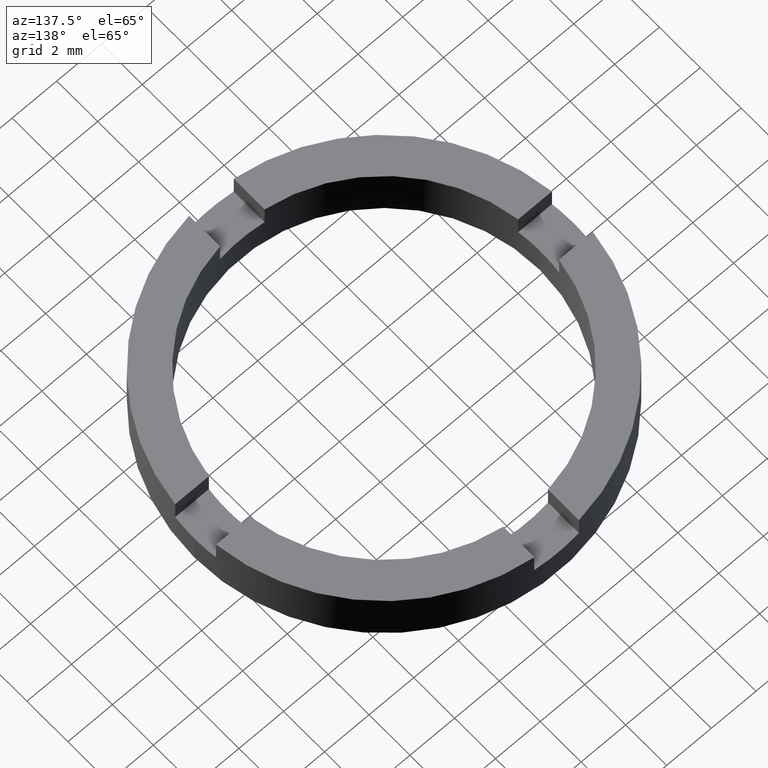
[diagram: clean part render]
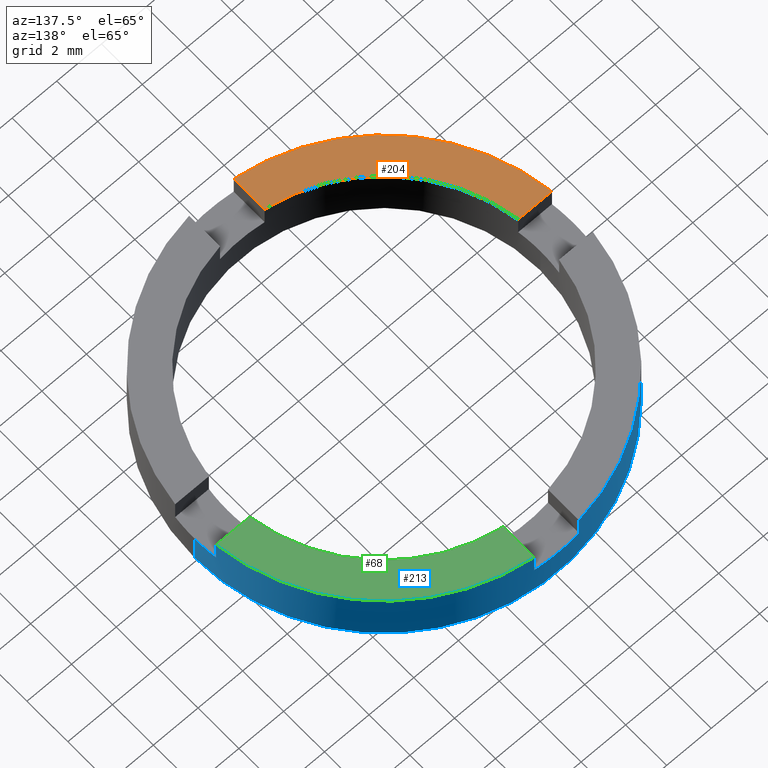
[diagram: same view with three faces highlighted in distinct colors, each labeled with its STEP entity id]
A machine part, auxiliary view with three faces highlighted in distinct colors.
Their STEP definitions:

[orange] entity #204 — the highlighted planar face has unit normal (0, 0, 1).
#14 = CARTESIAN_POINT ( 'NONE',  ( -0.9999999999999986677, 0.000000000000000000, 2.500000000000000000 ) ) ;
#21 = EDGE_LOOP ( 'NONE', ( #253, #698, #503, #543 ) ) ;
#47 = VECTOR ( 'NONE', #82, 1000.000000000000000 ) ;
#52 = LINE ( 'NONE', #421, #47 ) ;
#65 = CIRCLE ( 'NONE', #172, 8.500000000000000000 ) ;
#71 = CARTESIAN_POINT ( 'NONE',  ( 0.000000000000000000, 0.000000000000000000, 2.500000000000000000 ) ) ;
#82 = DIRECTION ( 'NONE',  ( 1.000000000000000000, -3.737308665155915423E-15, 0.000000000000000000 ) ) ;
#99 = EDGE_CURVE ( 'NONE', #127, #759, #488, .T. ) ;
#127 = VERTEX_POINT ( 'NONE', #416 ) ;
#162 = CARTESIAN_POINT ( 'NONE',  ( 0.000000000000000000, 0.000000000000000000, 2.500000000000000000 ) ) ;
#172 = AXIS2_PLACEMENT_3D ( 'NONE', #71, #773, #370 ) ;
#188 = DIRECTION ( 'NONE',  ( 0.000000000000000000, 0.000000000000000000, 1.000000000000000000 ) ) ;
#204 = ADVANCED_FACE ( 'NONE', ( #318 ), #680, .T. ) ;
#252 = VERTEX_POINT ( 'NONE', #469 ) ;
#253 = ORIENTED_EDGE ( 'NONE', *, *, #320, .F. ) ;
#318 = FACE_OUTER_BOUND ( 'NONE', #21, .T. ) ;
#320 = EDGE_CURVE ( 'NONE', #478, #252, #52, .T. ) ;
#335 = CIRCLE ( 'NONE', #646, 7.000000000000000000 ) ;
#351 = CARTESIAN_POINT ( 'NONE',  ( -8.440971508067070417, -0.9999999999999696909, 2.500000000000000000 ) ) ;
#353 = AXIS2_PLACEMENT_3D ( 'NONE', #504, #188, #358 ) ;
#358 = DIRECTION ( 'NONE',  ( 1.000000000000000000, 0.000000000000000000, -0.000000000000000000 ) ) ;
#370 = DIRECTION ( 'NONE',  ( 1.000000000000000000, 0.000000000000000000, 0.000000000000000000 ) ) ;
#416 = CARTESIAN_POINT ( 'NONE',  ( -0.9999999999999986677, -8.440971508067066864, 2.500000000000000000 ) ) ;
#421 = CARTESIAN_POINT ( 'NONE',  ( -3.737308665155919368E-15, -1.000000000000001110, 2.500000000000000000 ) ) ;
#469 = CARTESIAN_POINT ( 'NONE',  ( -6.928203230275513214, -0.9999999999999753530, 2.500000000000000000 ) ) ;
#478 = VERTEX_POINT ( 'NONE', #351 ) ;
#488 = LINE ( 'NONE', #14, #761 ) ;
#503 = ORIENTED_EDGE ( 'NONE', *, *, #99, .T. ) ;
#504 = CARTESIAN_POINT ( 'NONE',  ( 0.000000000000000000, 0.000000000000000000, 2.500000000000000000 ) ) ;
#543 = ORIENTED_EDGE ( 'NONE', *, *, #628, .F. ) ;
#573 = DIRECTION ( 'NONE',  ( 1.000000000000000000, 0.000000000000000000, 0.000000000000000000 ) ) ;
#577 = DIRECTION ( 'NONE',  ( 0.000000000000000000, 1.000000000000000000, -0.000000000000000000 ) ) ;
#598 = EDGE_CURVE ( 'NONE', #478, #127, #65, .T. ) ;
#611 = DIRECTION ( 'NONE',  ( 0.000000000000000000, 0.000000000000000000, 1.000000000000000000 ) ) ;
#628 = EDGE_CURVE ( 'NONE', #252, #759, #335, .T. ) ;
#646 = AXIS2_PLACEMENT_3D ( 'NONE', #162, #611, #573 ) ;
#680 = PLANE ( 'NONE',  #353 ) ;
#698 = ORIENTED_EDGE ( 'NONE', *, *, #598, .T. ) ;
#702 = CARTESIAN_POINT ( 'NONE',  ( -0.9999999999999986677, -6.928203230275509661, 2.500000000000000000 ) ) ;
#759 = VERTEX_POINT ( 'NONE', #702 ) ;
#761 = VECTOR ( 'NONE', #577, 1000.000000000000000 ) ;
#773 = DIRECTION ( 'NONE',  ( 0.000000000000000000, 0.000000000000000000, 1.000000000000000000 ) ) ;

[blue] entity #213 — the highlighted cylindrical surface (partial cylindrical patch) has radius 8.5 mm, axis along (-0, -0, -1).
#1 = LINE ( 'NONE', #619, #499 ) ;
#3 = ORIENTED_EDGE ( 'NONE', *, *, #400, .F. ) ;
#5 = CIRCLE ( 'NONE', #361, 8.500000000000000000 ) ;
#7 = ORIENTED_EDGE ( 'NONE', *, *, #138, .F. ) ;
#8 = VERTEX_POINT ( 'NONE', #76 ) ;
#9 = LINE ( 'NONE', #83, #497 ) ;
#20 = EDGE_CURVE ( 'NONE', #660, #282, #223, .T. ) ;
#37 = VECTOR ( 'NONE', #564, 1000.000000000000000 ) ;
#41 = CIRCLE ( 'NONE', #307, 8.500000000000000000 ) ;
#46 = LINE ( 'NONE', #192, #51 ) ;
#48 = CIRCLE ( 'NONE', #627, 8.500000000000000000 ) ;
#51 = VECTOR ( 'NONE', #290, 1000.000000000000000 ) ;
#53 = EDGE_CURVE ( 'NONE', #501, #660, #1, .T. ) ;
#73 = EDGE_LOOP ( 'NONE', ( #3, #113, #111, #278, #395, #726, #7, #535, #750, #738, #766, #270 ) ) ;
#76 = CARTESIAN_POINT ( 'NONE',  ( -8.500000000000000000, 0.000000000000000000, 0.000000000000000000 ) ) ;
#78 = DIRECTION ( 'NONE',  ( 0.000000000000000000, 0.000000000000000000, 1.000000000000000000 ) ) ;
#83 = CARTESIAN_POINT ( 'NONE',  ( -8.500000000000000000, 0.000000000000000000, 2.500000000000000000 ) ) ;
#89 = CARTESIAN_POINT ( 'NONE',  ( 0.000000000000000000, 0.000000000000000000, 0.000000000000000000 ) ) ;
#100 = CARTESIAN_POINT ( 'NONE',  ( -8.440971508067063311, 1.000000000000030642, 1.500000000000000000 ) ) ;
#107 = EDGE_CURVE ( 'NONE', #229, #377, #5, .T. ) ;
#111 = ORIENTED_EDGE ( 'NONE', *, *, #445, .T. ) ;
#113 = ORIENTED_EDGE ( 'NONE', *, *, #319, .T. ) ;
#129 = CARTESIAN_POINT ( 'NONE',  ( -8.500000000000000000, 0.000000000000000000, 1.500000000000000000 ) ) ;
#132 = AXIS2_PLACEMENT_3D ( 'NONE', #721, #729, #355 ) ;
#134 = DIRECTION ( 'NONE',  ( 0.000000000000000000, 0.000000000000000000, 1.000000000000000000 ) ) ;
#138 = EDGE_CURVE ( 'NONE', #659, #489, #48, .T. ) ;
#153 = CARTESIAN_POINT ( 'NONE',  ( 1.000000000000001332, 8.440971508067066864, 2.500000000000000000 ) ) ;
#158 = CARTESIAN_POINT ( 'NONE',  ( 8.500000000000000000, 1.040949779275250140E-15, 0.000000000000000000 ) ) ;
#165 = CARTESIAN_POINT ( 'NONE',  ( -8.440971508067063311, 1.000000000000030642, 1.500000000000000000 ) ) ;
#169 = DIRECTION ( 'NONE',  ( -0.000000000000000000, 0.000000000000000000, 1.000000000000000000 ) ) ;
#184 = AXIS2_PLACEMENT_3D ( 'NONE', #356, #360, #399 ) ;
#192 = CARTESIAN_POINT ( 'NONE',  ( 1.000000000000001332, 8.440971508067066864, 1.500000000000000000 ) ) ;
#198 = VERTEX_POINT ( 'NONE', #590 ) ;
#213 = ADVANCED_FACE ( 'NONE', ( #587 ), #306, .T. ) ;
#214 = DIRECTION ( 'NONE',  ( -0.000000000000000000, -0.000000000000000000, 1.000000000000000000 ) ) ;
#223 = CIRCLE ( 'NONE', #392, 8.500000000000000000 ) ;
#226 = VERTEX_POINT ( 'NONE', #604 ) ;
#229 = VERTEX_POINT ( 'NONE', #100 ) ;
#267 = EDGE_CURVE ( 'NONE', #724, #282, #46, .T. ) ;
#270 = ORIENTED_EDGE ( 'NONE', *, *, #53, .F. ) ;
#271 = EDGE_CURVE ( 'NONE', #724, #198, #313, .T. ) ;
#278 = ORIENTED_EDGE ( 'NONE', *, *, #715, .F. ) ;
#282 = VERTEX_POINT ( 'NONE', #153 ) ;
#290 = DIRECTION ( 'NONE',  ( -0.000000000000000000, -0.000000000000000000, 1.000000000000000000 ) ) ;
#297 = LINE ( 'NONE', #165, #593 ) ;
#306 = CYLINDRICAL_SURFACE ( 'NONE', #132, 8.500000000000000000 ) ;
#307 = AXIS2_PLACEMENT_3D ( 'NONE', #89, #134, #613 ) ;
#313 = CIRCLE ( 'NONE', #184, 8.500000000000000000 ) ;
#319 = EDGE_CURVE ( 'NONE', #226, #673, #583, .T. ) ;
#324 = DIRECTION ( 'NONE',  ( 1.000000000000000000, 0.000000000000000000, 0.000000000000000000 ) ) ;
#343 = VECTOR ( 'NONE', #644, 1000.000000000000000 ) ;
#344 = LINE ( 'NONE', #468, #343 ) ;
#355 = DIRECTION ( 'NONE',  ( -1.000000000000000000, 0.000000000000000000, 0.000000000000000000 ) ) ;
#356 = CARTESIAN_POINT ( 'NONE',  ( 0.000000000000000000, 0.000000000000000000, 1.500000000000000000 ) ) ;
#360 = DIRECTION ( 'NONE',  ( -0.000000000000000000, 0.000000000000000000, 1.000000000000000000 ) ) ;
#361 = AXIS2_PLACEMENT_3D ( 'NONE', #379, #471, #624 ) ;
#366 = CARTESIAN_POINT ( 'NONE',  ( 8.500000000000000000, 1.040949779275250140E-15, 2.500000000000000000 ) ) ;
#377 = VERTEX_POINT ( 'NONE', #129 ) ;
#379 = CARTESIAN_POINT ( 'NONE',  ( 0.000000000000000000, 0.000000000000000000, 1.500000000000000000 ) ) ;
#392 = AXIS2_PLACEMENT_3D ( 'NONE', #650, #460, #324 ) ;
#395 = ORIENTED_EDGE ( 'NONE', *, *, #107, .F. ) ;
#399 = DIRECTION ( 'NONE',  ( 1.000000000000000000, 0.000000000000000000, 0.000000000000000000 ) ) ;
#400 = EDGE_CURVE ( 'NONE', #226, #501, #574, .T. ) ;
#433 = CARTESIAN_POINT ( 'NONE',  ( -8.440971508067063311, 1.000000000000030642, 2.500000000000000000 ) ) ;
#445 = EDGE_CURVE ( 'NONE', #673, #8, #41, .T. ) ;
#456 = EDGE_CURVE ( 'NONE', #229, #489, #297, .T. ) ;
#460 = DIRECTION ( 'NONE',  ( 0.000000000000000000, 0.000000000000000000, 1.000000000000000000 ) ) ;
#464 = CARTESIAN_POINT ( 'NONE',  ( 8.440971508067070417, 0.9999999999999672484, 2.500000000000000000 ) ) ;
#468 = CARTESIAN_POINT ( 'NONE',  ( -0.9999999999999986677, 8.440971508067066864, 1.500000000000000000 ) ) ;
#471 = DIRECTION ( 'NONE',  ( -0.000000000000000000, 0.000000000000000000, 1.000000000000000000 ) ) ;
#489 = VERTEX_POINT ( 'NONE', #433 ) ;
#497 = VECTOR ( 'NONE', #707, 1000.000000000000000 ) ;
#499 = VECTOR ( 'NONE', #656, 1000.000000000000000 ) ;
#501 = VERTEX_POINT ( 'NONE', #672 ) ;
#535 = ORIENTED_EDGE ( 'NONE', *, *, #610, .F. ) ;
#564 = DIRECTION ( 'NONE',  ( -0.000000000000000000, -0.000000000000000000, -1.000000000000000000 ) ) ;
#574 = CIRCLE ( 'NONE', #711, 8.500000000000000000 ) ;
#583 = LINE ( 'NONE', #366, #37 ) ;
#587 = FACE_OUTER_BOUND ( 'NONE', #73, .T. ) ;
#590 = CARTESIAN_POINT ( 'NONE',  ( -0.9999999999999986677, 8.440971508067066864, 1.500000000000000000 ) ) ;
#593 = VECTOR ( 'NONE', #214, 1000.000000000000000 ) ;
#604 = CARTESIAN_POINT ( 'NONE',  ( 8.500000000000000000, 1.040949779275250140E-15, 1.500000000000000000 ) ) ;
#610 = EDGE_CURVE ( 'NONE', #198, #659, #344, .T. ) ;
#613 = DIRECTION ( 'NONE',  ( 1.000000000000000000, 0.000000000000000000, 0.000000000000000000 ) ) ;
#619 = CARTESIAN_POINT ( 'NONE',  ( 8.440971508067070417, 0.9999999999999672484, 1.500000000000000000 ) ) ;
#622 = CARTESIAN_POINT ( 'NONE',  ( -0.9999999999999986677, 8.440971508067066864, 2.500000000000000000 ) ) ;
#624 = DIRECTION ( 'NONE',  ( 1.000000000000000000, 0.000000000000000000, 0.000000000000000000 ) ) ;
#625 = DIRECTION ( 'NONE',  ( 1.000000000000000000, 0.000000000000000000, 0.000000000000000000 ) ) ;
#626 = CARTESIAN_POINT ( 'NONE',  ( 1.000000000000001332, 8.440971508067066864, 1.500000000000000000 ) ) ;
#627 = AXIS2_PLACEMENT_3D ( 'NONE', #651, #78, #640 ) ;
#640 = DIRECTION ( 'NONE',  ( 1.000000000000000000, 0.000000000000000000, 0.000000000000000000 ) ) ;
#644 = DIRECTION ( 'NONE',  ( -0.000000000000000000, -0.000000000000000000, 1.000000000000000000 ) ) ;
#650 = CARTESIAN_POINT ( 'NONE',  ( 0.000000000000000000, 0.000000000000000000, 2.500000000000000000 ) ) ;
#651 = CARTESIAN_POINT ( 'NONE',  ( 0.000000000000000000, 0.000000000000000000, 2.500000000000000000 ) ) ;
#656 = DIRECTION ( 'NONE',  ( -0.000000000000000000, -0.000000000000000000, 1.000000000000000000 ) ) ;
#659 = VERTEX_POINT ( 'NONE', #622 ) ;
#660 = VERTEX_POINT ( 'NONE', #464 ) ;
#672 = CARTESIAN_POINT ( 'NONE',  ( 8.440971508067070417, 0.9999999999999672484, 1.500000000000000000 ) ) ;
#673 = VERTEX_POINT ( 'NONE', #158 ) ;
#707 = DIRECTION ( 'NONE',  ( -0.000000000000000000, -0.000000000000000000, -1.000000000000000000 ) ) ;
#711 = AXIS2_PLACEMENT_3D ( 'NONE', #772, #169, #625 ) ;
#715 = EDGE_CURVE ( 'NONE', #377, #8, #9, .T. ) ;
#721 = CARTESIAN_POINT ( 'NONE',  ( 0.000000000000000000, 0.000000000000000000, 2.500000000000000000 ) ) ;
#724 = VERTEX_POINT ( 'NONE', #626 ) ;
#726 = ORIENTED_EDGE ( 'NONE', *, *, #456, .T. ) ;
#729 = DIRECTION ( 'NONE',  ( -0.000000000000000000, -0.000000000000000000, -1.000000000000000000 ) ) ;
#738 = ORIENTED_EDGE ( 'NONE', *, *, #267, .T. ) ;
#750 = ORIENTED_EDGE ( 'NONE', *, *, #271, .F. ) ;
#766 = ORIENTED_EDGE ( 'NONE', *, *, #20, .F. ) ;
#772 = CARTESIAN_POINT ( 'NONE',  ( 0.000000000000000000, 0.000000000000000000, 1.500000000000000000 ) ) ;

[green] entity #68 — the highlighted planar face has unit normal (0, 0, 1).
#4 = CARTESIAN_POINT ( 'NONE',  ( 3.750063984832210975E-15, 0.9999999999999988898, 2.500000000000000000 ) ) ;
#20 = EDGE_CURVE ( 'NONE', #660, #282, #223, .T. ) ;
#28 = LINE ( 'NONE', #4, #589 ) ;
#68 = ADVANCED_FACE ( 'NONE', ( #284 ), #378, .T. ) ;
#75 = CARTESIAN_POINT ( 'NONE',  ( 0.000000000000000000, 0.000000000000000000, 2.500000000000000000 ) ) ;
#93 = CARTESIAN_POINT ( 'NONE',  ( 6.928203230275513214, 0.9999999999999729106, 2.500000000000000000 ) ) ;
#119 = CARTESIAN_POINT ( 'NONE',  ( 1.000000000000001332, 6.928203230275509661, 2.500000000000000000 ) ) ;
#153 = CARTESIAN_POINT ( 'NONE',  ( 1.000000000000001332, 8.440971508067066864, 2.500000000000000000 ) ) ;
#163 = DIRECTION ( 'NONE',  ( 1.000000000000000000, 0.000000000000000000, -0.000000000000000000 ) ) ;
#206 = ORIENTED_EDGE ( 'NONE', *, *, #305, .F. ) ;
#223 = CIRCLE ( 'NONE', #392, 8.500000000000000000 ) ;
#282 = VERTEX_POINT ( 'NONE', #153 ) ;
#284 = FACE_OUTER_BOUND ( 'NONE', #736, .T. ) ;
#305 = EDGE_CURVE ( 'NONE', #454, #282, #314, .T. ) ;
#314 = LINE ( 'NONE', #701, #575 ) ;
#324 = DIRECTION ( 'NONE',  ( 1.000000000000000000, 0.000000000000000000, 0.000000000000000000 ) ) ;
#334 = EDGE_CURVE ( 'NONE', #520, #660, #28, .T. ) ;
#365 = CARTESIAN_POINT ( 'NONE',  ( 0.000000000000000000, 0.000000000000000000, 2.500000000000000000 ) ) ;
#378 = PLANE ( 'NONE',  #436 ) ;
#392 = AXIS2_PLACEMENT_3D ( 'NONE', #650, #460, #324 ) ;
#420 = ORIENTED_EDGE ( 'NONE', *, *, #20, .T. ) ;
#436 = AXIS2_PLACEMENT_3D ( 'NONE', #75, #760, #163 ) ;
#454 = VERTEX_POINT ( 'NONE', #119 ) ;
#455 = ORIENTED_EDGE ( 'NONE', *, *, #686, .F. ) ;
#460 = DIRECTION ( 'NONE',  ( 0.000000000000000000, 0.000000000000000000, 1.000000000000000000 ) ) ;
#464 = CARTESIAN_POINT ( 'NONE',  ( 8.440971508067070417, 0.9999999999999672484, 2.500000000000000000 ) ) ;
#516 = ORIENTED_EDGE ( 'NONE', *, *, #334, .T. ) ;
#520 = VERTEX_POINT ( 'NONE', #93 ) ;
#521 = CIRCLE ( 'NONE', #561, 7.000000000000000000 ) ;
#561 = AXIS2_PLACEMENT_3D ( 'NONE', #365, #618, #653 ) ;
#571 = DIRECTION ( 'NONE',  ( -1.275531967630005153E-17, 1.000000000000000000, 0.000000000000000000 ) ) ;
#575 = VECTOR ( 'NONE', #571, 1000.000000000000000 ) ;
#589 = VECTOR ( 'NONE', #617, 1000.000000000000000 ) ;
#617 = DIRECTION ( 'NONE',  ( 1.000000000000000000, -3.750063984832214919E-15, 0.000000000000000000 ) ) ;
#618 = DIRECTION ( 'NONE',  ( 0.000000000000000000, 0.000000000000000000, 1.000000000000000000 ) ) ;
#650 = CARTESIAN_POINT ( 'NONE',  ( 0.000000000000000000, 0.000000000000000000, 2.500000000000000000 ) ) ;
#653 = DIRECTION ( 'NONE',  ( 1.000000000000000000, 0.000000000000000000, 0.000000000000000000 ) ) ;
#660 = VERTEX_POINT ( 'NONE', #464 ) ;
#686 = EDGE_CURVE ( 'NONE', #520, #454, #521, .T. ) ;
#701 = CARTESIAN_POINT ( 'NONE',  ( 1.000000000000001332, 1.275531967630006848E-17, 2.500000000000000000 ) ) ;
#736 = EDGE_LOOP ( 'NONE', ( #206, #455, #516, #420 ) ) ;
#760 = DIRECTION ( 'NONE',  ( 0.000000000000000000, 0.000000000000000000, 1.000000000000000000 ) ) ;